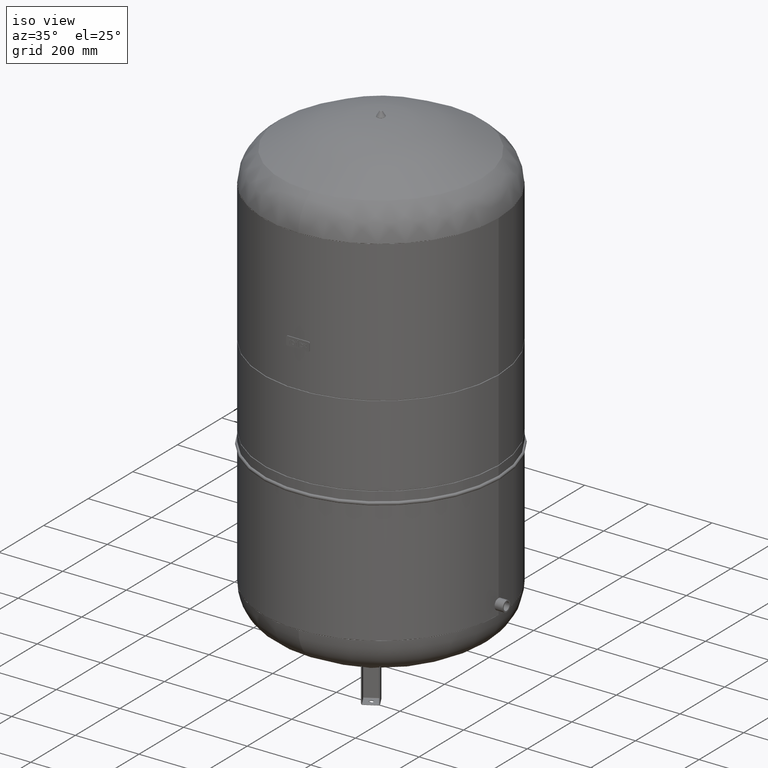
[diagram: clean part render]
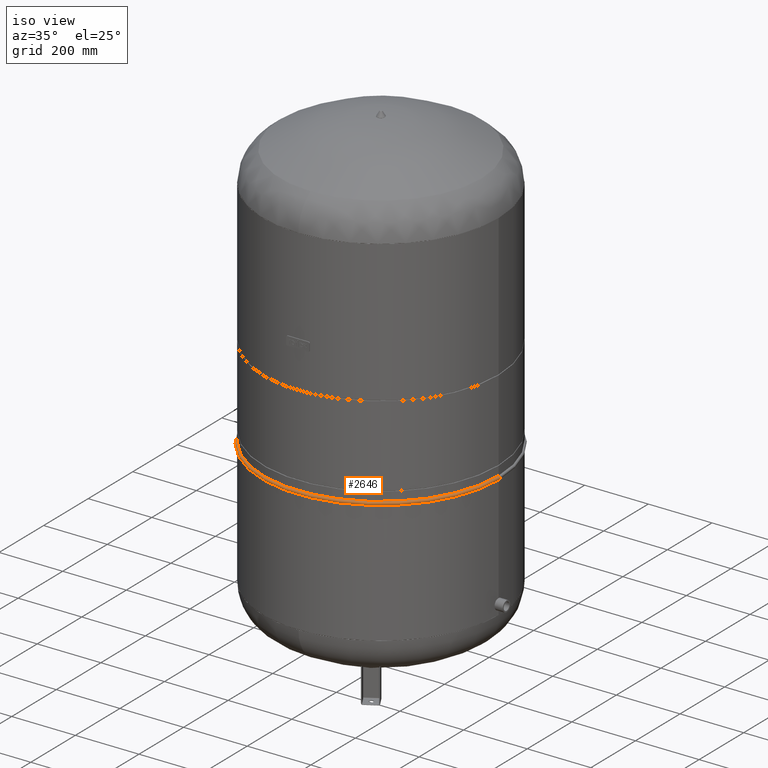
[diagram: same view with one face highlighted and labeled with its STEP entity id]
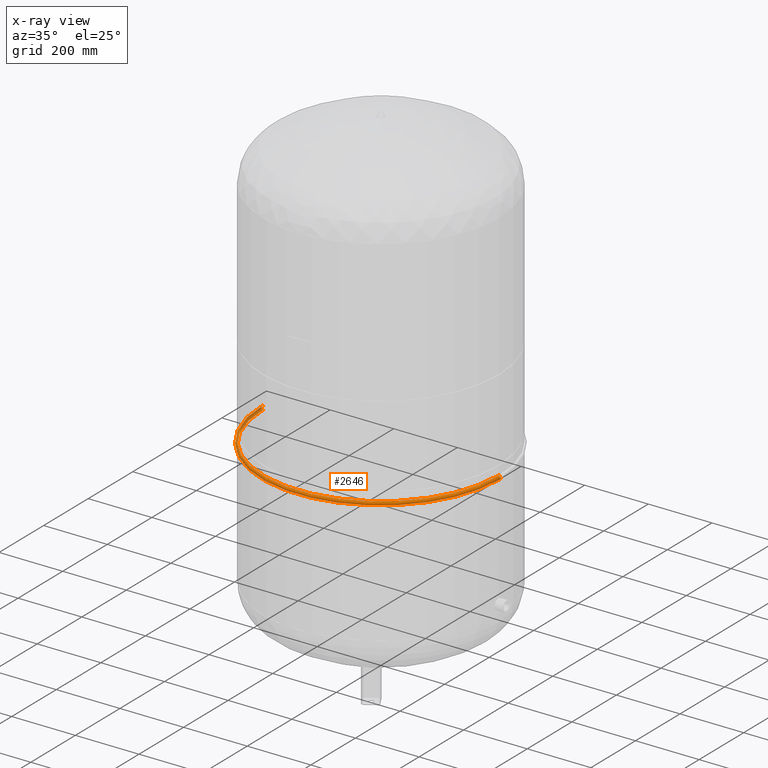
[diagram: x-ray of the same camera — body ghosted, the highlighted face saturated]
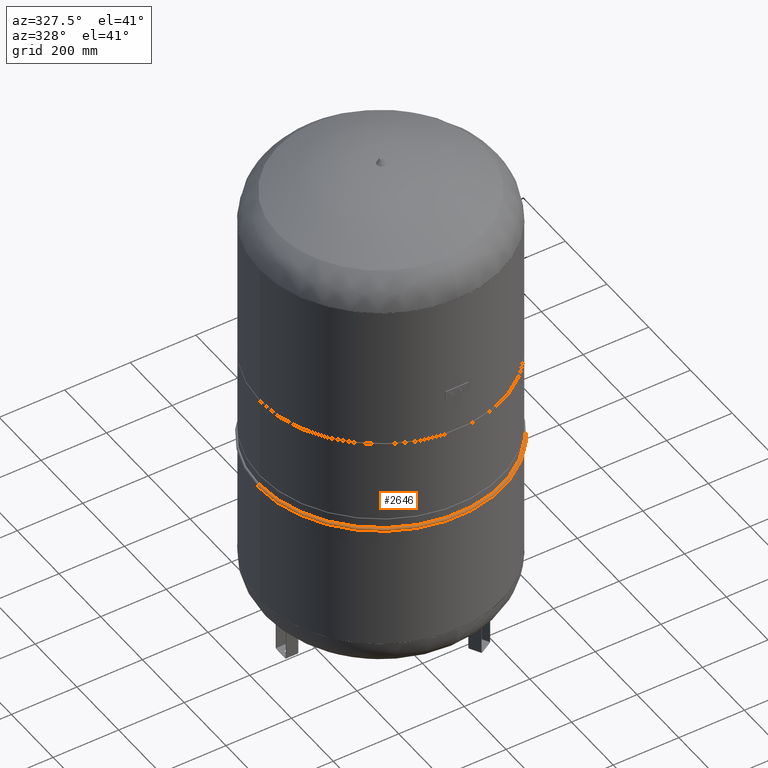
[diagram: same view with one face highlighted and labeled with its STEP entity id]
A machine part, iso view. The second image highlights one B-rep face of the part: STEP entity #2646.
The next image is the same camera in x-ray: the body ghosted, the highlighted face saturated — about 8% of this face is hidden behind the body in this view.
A second angle (auxiliary view) of the same face is appended — the face is thin or edge-on in the first view.
In plain terms, the highlighted toroidal blend (fillet) surface has major radius 370 mm and minor (blend) radius 5.45 mm.
Its self-contained STEP definition (entity closure, byte-faithful):
#2578=CARTESIAN_POINT('',(369.999999999999550,0.0,609.899999999999860));
#2579=VERTEX_POINT('',#2578);
#2595=CARTESIAN_POINT('',(-369.999999999999550,-4.531044E-014,609.899999999999640));
#2596=VERTEX_POINT('',#2595);
#2603=CARTESIAN_POINT('',(2.663860E-014,0.0,609.899999999999860));
#2604=DIRECTION('',(0.0,0.0,1.0));
#2605=DIRECTION('',(1.0,0.0,0.0));
#2606=AXIS2_PLACEMENT_3D('',#2603,#2604,#2605);
#2607=CIRCLE('',#2606,369.999999999999550);
#2608=EDGE_CURVE('',#2596,#2579,#2607,.T.);
#2613=CARTESIAN_POINT('',(7.105427E-014,0.0,604.449999999999820));
#2614=DIRECTION('',(-1.589415E-016,0.0,1.0));
#2615=DIRECTION('',(1.0,0.0,0.0));
#2616=AXIS2_PLACEMENT_3D('',#2613,#2614,#2615);
#2617=TOROIDAL_SURFACE('',#2616,370.000000000000060,5.449999999999999);
#2618=CARTESIAN_POINT('',(370.000000000000280,0.0,598.999999999999770));
#2619=VERTEX_POINT('',#2618);
#2620=CARTESIAN_POINT('',(370.000000000000110,0.0,604.449999999999930));
#2621=DIRECTION('',(0.0,1.0,0.0));
#2622=DIRECTION('',(1.0,0.0,0.0));
#2623=AXIS2_PLACEMENT_3D('',#2620,#2621,#2622);
#2624=CIRCLE('',#2623,5.449999999999999);
#2625=EDGE_CURVE('',#2579,#2619,#2624,.T.);
#2626=ORIENTED_EDGE('',*,*,#2625,.F.);
#2627=ORIENTED_EDGE('',*,*,#2608,.F.);
#2628=CARTESIAN_POINT('',(-370.0,-4.531044E-014,598.999999999999770));
#2629=VERTEX_POINT('',#2628);
#2630=CARTESIAN_POINT('',(-370.0,-4.531044E-014,604.449999999999700));
#2631=DIRECTION('',(0.0,-1.0,0.0));
#2632=DIRECTION('',(-1.0,0.0,0.0));
#2633=AXIS2_PLACEMENT_3D('',#2630,#2631,#2632);
#2634=CIRCLE('',#2633,5.449999999999999);
#2635=EDGE_CURVE('',#2596,#2629,#2634,.T.);
#2636=ORIENTED_EDGE('',*,*,#2635,.T.);
#2637=CARTESIAN_POINT('',(2.837106E-014,0.0,598.999999999999770));
#2638=DIRECTION('',(0.0,0.0,1.0));
#2639=DIRECTION('',(1.0,0.0,0.0));
#2640=AXIS2_PLACEMENT_3D('',#2637,#2638,#2639);
#2641=CIRCLE('',#2640,370.000000000000280);
#2642=EDGE_CURVE('',#2629,#2619,#2641,.T.);
#2643=ORIENTED_EDGE('',*,*,#2642,.T.);
#2644=EDGE_LOOP('',(#2626,#2627,#2636,#2643));
#2645=FACE_OUTER_BOUND('',#2644,.T.);
#2646=ADVANCED_FACE('',(#2645),#2617,.T.);